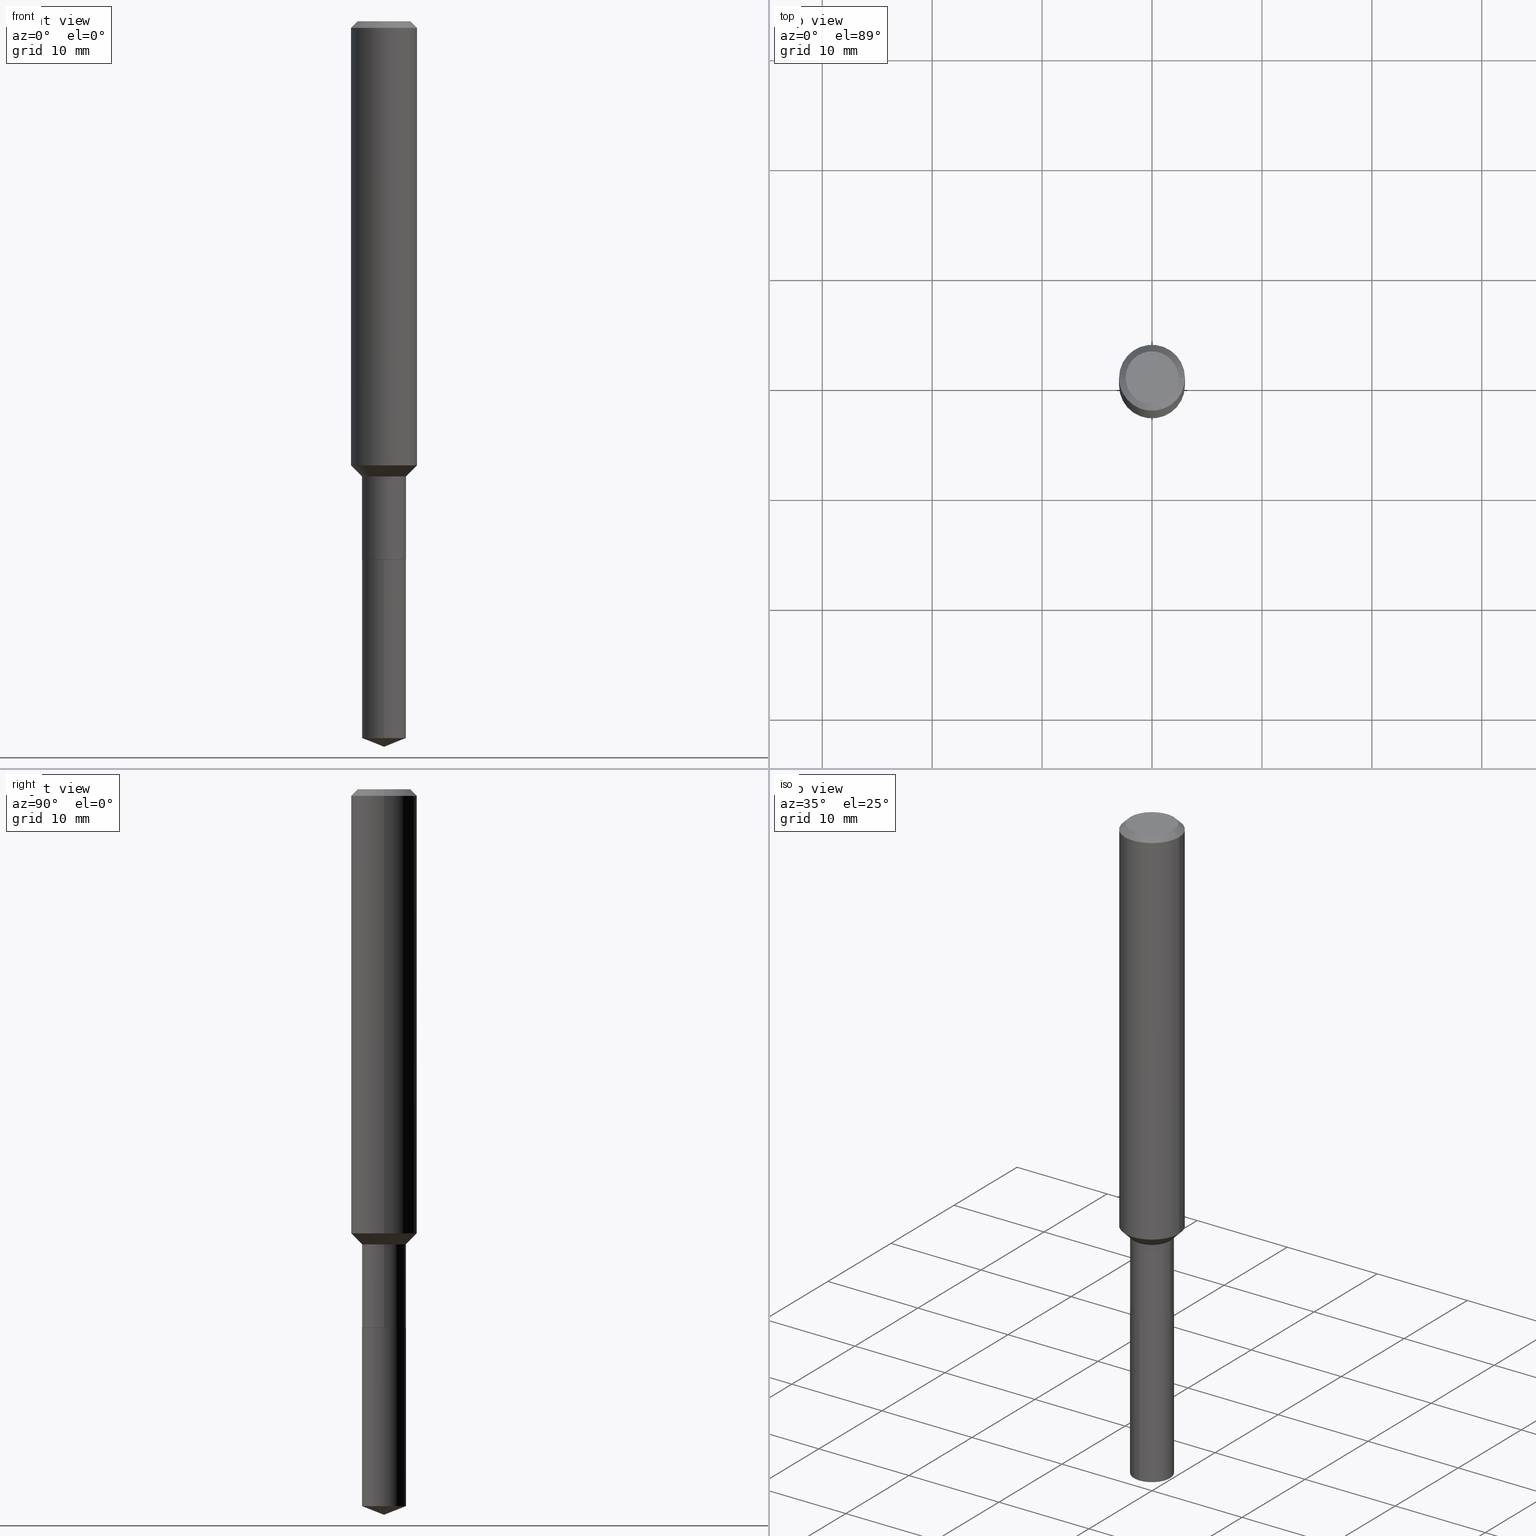
[diagram: canonical four-view strip — front | top / right | iso, engineering-drawing reading convention]
A machine part, canonical four-view strip (front | top / right | iso — engineering-drawing reading convention). The complete STEP part file that produces these views, byte-faithful:
ISO-10303-21;
HEADER;
FILE_DESCRIPTION (( 'STEP AP203' ),
    '1' );
FILE_NAME ('66410.STEP',
    '2024-04-24T22:19:05',
    ( '' ),
    ( '' ),
    'SwSTEP 2.0',
    'SolidWorks 2023',
    '' );
FILE_SCHEMA (( 'CONFIG_CONTROL_DESIGN' ));
ENDSEC;

DATA;
#1 = AXIS2_PLACEMENT_3D ( 'NONE', #396, #177, #435 ) ;
#2 = EDGE_CURVE ( 'NONE', #484, #388, #211, .T. ) ;
#3 = DIRECTION ( 'NONE',  ( 1.000000000000000000, 0.000000000000000000, 0.000000000000000000 ) ) ;
#4 = DIRECTION ( 'NONE',  ( -6.982962677686264344E-15, -1.000000000000000000, 6.938026650575906587E-15 ) ) ;
#5 = CARTESIAN_POINT ( 'NONE',  ( 0.000000000000000000, 0.000000000000000000, 0.000000000000000000 ) ) ;
#6 = DIRECTION ( 'NONE',  ( 1.000000000000000000, -6.982962677686267499E-15, 4.875432709231658792E-29 ) ) ;
#7 = APPROVAL_ROLE ( '' ) ;
#8 = CARTESIAN_POINT ( 'NONE',  ( 4.716267017698007905E-46, -6.733579360998555036E-32, -1.928573779297252010E-17 ) ) ;
#9 = VECTOR ( 'NONE', #148, 39.37007874015748143 ) ;
#10 = AXIS2_PLACEMENT_3D ( 'NONE', #476, #391, #58 ) ;
#11 = DIRECTION ( 'NONE',  ( -2.445468806185136597E-29, 3.491481338843145583E-15, 1.000000000000000000 ) ) ;
#12 = DIRECTION ( 'NONE',  ( -2.445600324468022812E-29, 3.491292997176496654E-15, 1.000000000000000000 ) ) ;
#13 = CARTESIAN_POINT ( 'NONE',  ( 5.595524044111417134E-16, 0.07874999999999326983, -1.929100000000000259 ) ) ;
#14 = APPROVAL_ROLE ( '' ) ;
#15 = CARTESIAN_POINT ( 'NONE',  ( 4.716331139608654438E-29, -6.733670910092890989E-15, -1.928600000000000092 ) ) ;
#16 = CONICAL_SURFACE ( 'NONE', #1, 0.07825000000000000011, 0.7853981633978239785 ) ;
#17 = CARTESIAN_POINT ( 'NONE',  ( -0.07825000000000000011, -6.176767732855921811E-15, -1.929099999999999593 ) ) ;
#18 = VERTEX_POINT ( 'NONE', #77 ) ;
#19 = DIRECTION ( 'NONE',  ( -2.445468806185136877E-29, 3.491481338843145188E-15, 1.000000000000000000 ) ) ;
#20 = DIRECTION ( 'NONE',  ( -2.445468806185136597E-29, 3.491481338843145583E-15, 1.000000000000000000 ) ) ;
#21 = EDGE_LOOP ( 'NONE', ( #122, #194, #360, #249 ) ) ;
#22 = CONICAL_SURFACE ( 'NONE', #301, 0.07874999999999995892, 0.7853981633974482790 ) ;
#23 = CARTESIAN_POINT ( 'NONE',  ( 4.717553874011746118E-29, -6.735416650762310126E-15, -1.929099999999999593 ) ) ;
#24 = EDGE_LOOP ( 'NONE', ( #400, #252, #307, #136 ) ) ;
#25 = CARTESIAN_POINT ( 'NONE',  ( 0.000000000000000000, 0.000000000000000000, 0.000000000000000000 ) ) ;
#26 = ORIENTED_EDGE ( 'NONE', *, *, #384, .T. ) ;
#27 = CC_DESIGN_PERSON_AND_ORGANIZATION_ASSIGNMENT ( #488, #266, ( #46 ) ) ;
#28 = CARTESIAN_POINT ( 'NONE',  ( 0.1181000000000001909, -6.378063535731712963E-15, -1.590549999999999464 ) ) ;
#29 = ORIENTED_EDGE ( 'NONE', *, *, #455, .F. ) ;
#30 = AXIS2_PLACEMENT_3D ( 'NONE', #383, #50, #201 ) ;
#31 = AXIS2_PLACEMENT_3D ( 'NONE', #295, #401, #318 ) ;
#32 = APPLICATION_PROTOCOL_DEFINITION ( 'international standard', 'config_control_design', 1994, #42 ) ;
#33 = EDGE_LOOP ( 'NONE', ( #217, #68, #338, #259 ) ) ;
#34 = CARTESIAN_POINT ( 'NONE',  ( 6.354140459258678806E-29, -9.072502383681672387E-15, -2.598399999999999821 ) ) ;
#35 =( CONVERSION_BASED_UNIT ( 'INCH', #185 ) LENGTH_UNIT ( ) NAMED_UNIT ( #243 ) );
#36 = ORIENTED_EDGE ( 'NONE', *, *, #187, .T. ) ;
#37 = CC_DESIGN_PERSON_AND_ORGANIZATION_ASSIGNMENT ( #147, #376, ( #355 ) ) ;
#38 = AXIS2_PLACEMENT_3D ( 'NONE', #23, #214, #433 ) ;
#39 = CALENDAR_DATE ( 2024, 24, 4 ) ;
#40 = PLANE ( 'NONE',  #228 ) ;
#41 = EDGE_LOOP ( 'NONE', ( #213, #63, #443, #51 ) ) ;
#42 = APPLICATION_CONTEXT ( 'configuration controlled 3d designs of mechanical parts and assemblies' ) ;
#43 = CC_DESIGN_PERSON_AND_ORGANIZATION_ASSIGNMENT ( #336, #306, ( #369 ) ) ;
#44 = DIRECTION ( 'NONE',  ( -2.438088387897960049E-29, 3.491481338843145188E-15, 1.000000000000000000 ) ) ;
#45 = AXIS2_PLACEMENT_3D ( 'NONE', #356, #12, #382 ) ;
#46 = PRODUCT_DEFINITION_FORMATION_WITH_SPECIFIED_SOURCE ( 'ANY', '', #355, .NOT_KNOWN. ) ;
#47 = DIRECTION ( 'NONE',  ( -2.445468806185136597E-29, 3.491481338843145583E-15, 1.000000000000000000 ) ) ;
#48 = DIRECTION ( 'NONE',  ( -6.982962677686264344E-15, -1.000000000000000000, 3.469013325287953293E-15 ) ) ;
#49 = ADVANCED_FACE ( 'NONE', ( #343 ), #375, .T. ) ;
#50 = DIRECTION ( 'NONE',  ( -2.445468806185136597E-29, 3.491481338843145583E-15, 1.000000000000000000 ) ) ;
#51 = ORIENTED_EDGE ( 'NONE', *, *, #244, .F. ) ;
#52 = CC_DESIGN_DATE_AND_TIME_ASSIGNMENT ( #114, #74, ( #436 ) ) ;
#53 = DATE_AND_TIME ( #462, #337 ) ;
#54 = CONICAL_SURFACE ( 'NONE', #38, 0.07825000000000000011, 0.7853981633978239785 ) ;
#55 = CARTESIAN_POINT ( 'NONE',  ( -0.07874999999999997280, 5.595524044110787031E-16, -3.873661383575737091E-30 ) ) ;
#56 = ORIENTED_EDGE ( 'NONE', *, *, #157, .T. ) ;
#57 = CARTESIAN_POINT ( 'NONE',  ( -0.07874999999999995892, -5.652665767725588167E-15, -1.629899999999999682 ) ) ;
#58 = DIRECTION ( 'NONE',  ( 1.000000000000000000, -6.982962677686266711E-15, 4.876176775795935793E-29 ) ) ;
#59 = EDGE_CURVE ( 'NONE', #215, #18, #368, .T. ) ;
#60 = ORIENTED_EDGE ( 'NONE', *, *, #314, .T. ) ;
#61 = DIRECTION ( 'NONE',  ( 1.000000000000000000, -6.982962677686266711E-15, 0.000000000000000000 ) ) ;
#62 = AXIS2_PLACEMENT_3D ( 'NONE', #459, #47, #162 ) ;
#63 = ORIENTED_EDGE ( 'NONE', *, *, #2, .T. ) ;
#64 = VECTOR ( 'NONE', #19, 39.37007874015748143 ) ;
#65 = CARTESIAN_POINT ( 'NONE',  ( -0.1181000000000001077, 8.391509709326790846E-16, -5.809262341591049389E-30 ) ) ;
#66 = ORIENTED_EDGE ( 'NONE', *, *, #419, .T. ) ;
#67 = CARTESIAN_POINT ( 'NONE',  ( -0.07825000000000000011, -6.179416960030031434E-15, -1.929099999999999593 ) ) ;
#68 = ORIENTED_EDGE ( 'NONE', *, *, #458, .T. ) ;
#69 = ADVANCED_FACE ( 'NONE', ( #457 ), #40, .F. ) ;
#70 = COORDINATED_UNIVERSAL_TIME_OFFSET ( 5, 0, .BEHIND. ) ;
#71 = ORIENTED_EDGE ( 'NONE', *, *, #274, .F. ) ;
#72 = AXIS2_PLACEMENT_3D ( 'NONE', #373, #270, #4 ) ;
#73 = VECTOR ( 'NONE', #107, 39.37007874015748143 ) ;
#74 = DATE_TIME_ROLE ( 'creation_date' ) ;
#75 = EDGE_CURVE ( 'NONE', #365, #215, #305, .T. ) ;
#76 = DESIGN_CONTEXT ( 'detailed design', #42, 'design' ) ;
#77 = CARTESIAN_POINT ( 'NONE',  ( -0.1180999999999999966, -1.978771245427539515E-15, -0.02362000000000014088 ) ) ;
#78 = DIRECTION ( 'NONE',  ( 0.000000000000000000, 0.000000000000000000, 1.000000000000000000 ) ) ;
#79 = FACE_OUTER_BOUND ( 'NONE', #241, .T. ) ;
#80 = MECHANICAL_CONTEXT ( 'NONE', #206, 'mechanical' ) ;
#81 = EDGE_LOOP ( 'NONE', ( #288, #402 ) ) ;
#82 = CIRCLE ( 'NONE', #352, 0.07825000000000000011 ) ;
#83 = VECTOR ( 'NONE', #285, 39.37007874015748854 ) ;
#84 = PERSON_AND_ORGANIZATION ( #258, #168 ) ;
#85 = ORIENTED_EDGE ( 'NONE', *, *, #218, .F. ) ;
#86 = CARTESIAN_POINT ( 'NONE',  ( -8.992908317008253669E-28, 1.283803411500265385E-13, 36.77167874015748339 ) ) ;
#87 = CARTESIAN_POINT ( 'NONE',  ( 4.717553874011746118E-29, -6.735416650762310126E-15, -1.929099999999999593 ) ) ;
#88 = CONICAL_SURFACE ( 'NONE', #291, 99.94676754583893796, 1.195550537616115960 ) ;
#89 = AXIS2_PLACEMENT_3D ( 'NONE', #99, #399, #61 ) ;
#90 = DIRECTION ( 'NONE',  ( -6.982962677686265922E-15, -1.000000000000000000, 3.498627837350040510E-15 ) ) ;
#91 = ORIENTED_EDGE ( 'NONE', *, *, #75, .T. ) ;
#92 = DIRECTION ( 'NONE',  ( -2.445600324468022812E-29, 3.491292997176496654E-15, 1.000000000000000000 ) ) ;
#93 = APPROVAL ( #341, 'UNSPECIFIED' ) ;
#94 = DIRECTION ( 'NONE',  ( 2.445468806185136597E-29, -3.491481338843145583E-15, -1.000000000000000000 ) ) ;
#95 = APPROVAL_PERSON_ORGANIZATION ( #84, #119, #221 ) ;
#96 = CARTESIAN_POINT ( 'NONE',  ( -0.1180999999999999966, 7.422191030112725094E-16, -0.02362000000000014088 ) ) ;
#97 = LINE ( 'NONE', #359, #430 ) ;
#98 = VERTEX_POINT ( 'NONE', #378 ) ;
#99 = CARTESIAN_POINT ( 'NONE',  ( 5.776197320209327532E-31, -8.246878922347559293E-17, -0.02362000000000014088 ) ) ;
#100 = ORIENTED_EDGE ( 'NONE', *, *, #187, .F. ) ;
#101 = CARTESIAN_POINT ( 'NONE',  ( -5.499083108677304340E-16, -0.07875000000000892397, -2.567379550045322478 ) ) ;
#102 = ORIENTED_EDGE ( 'NONE', *, *, #455, .T. ) ;
#103 = CIRCLE ( 'NONE', #272, 0.07874999999999995892 ) ;
#104 = DIRECTION ( 'NONE',  ( 1.000000000000000000, -6.982962677686267499E-15, 4.876176775795935793E-29 ) ) ;
#105 = VERTEX_POINT ( 'NONE', #222 ) ;
#106 = ADVANCED_FACE ( 'NONE', ( #79 ), #191, .F. ) ;
#107 = DIRECTION ( 'NONE',  ( 0.7071067811865459074, -7.319954787623249734E-15, -0.7071067811865491270 ) ) ;
#108 = ORIENTED_EDGE ( 'NONE', *, *, #268, .F. ) ;
#109 = PERSON_AND_ORGANIZATION_ROLE ( 'creator' ) ;
#110 = CARTESIAN_POINT ( 'NONE',  ( 0.09447999999999998066, -7.704367267948738690E-16, -1.928573779296752193E-17 ) ) ;
#111 = AXIS2_PLACEMENT_3D ( 'NONE', #169, #386, #465 ) ;
#112 =( NAMED_UNIT ( * ) PLANE_ANGLE_UNIT ( ) SI_UNIT ( $, .RADIAN. ) );
#113 = FACE_OUTER_BOUND ( 'NONE', #394, .T. ) ;
#114 = DATE_AND_TIME ( #406, #159 ) ;
#115 = CC_DESIGN_DATE_AND_TIME_ASSIGNMENT ( #381, #354, ( #369 ) ) ;
#116 = DIRECTION ( 'NONE',  ( -2.445600324468022812E-29, 3.491292997176496654E-15, 1.000000000000000000 ) ) ;
#117 = PRODUCT_DEFINITION_SHAPE ( 'NONE', 'NONE',  #436 ) ;
#118 = ORIENTED_EDGE ( 'NONE', *, *, #314, .F. ) ;
#119 = APPROVAL ( #152, 'UNSPECIFIED' ) ;
#120 = AXIS2_PLACEMENT_3D ( 'NONE', #240, #428, #239 ) ;
#121 = CC_DESIGN_APPROVAL ( #93, ( #436 ) ) ;
#122 = ORIENTED_EDGE ( 'NONE', *, *, #458, .F. ) ;
#123 = CARTESIAN_POINT ( 'NONE',  ( -5.499083108677462112E-16, -0.07875000000000671740, -1.929099999999999593 ) ) ;
#124 = DIRECTION ( 'NONE',  ( 0.7071067811865474617, -2.468850131082256666E-15, 0.7071067811865474617 ) ) ;
#125 = ORIENTED_EDGE ( 'NONE', *, *, #348, .F. ) ;
#126 = CONICAL_SURFACE ( 'NONE', #471, 99.94676754583893796, 1.195550537616115960 ) ;
#127 = DIRECTION ( 'NONE',  ( -2.445468806185136597E-29, 3.491481338843145583E-15, 1.000000000000000000 ) ) ;
#128 = DIRECTION ( 'NONE',  ( 1.000000000000000000, -6.982962677686266711E-15, 4.876176775795935793E-29 ) ) ;
#129 = DIRECTION ( 'NONE',  ( -1.000000000000000000, 6.982962677686266711E-15, 0.000000000000000000 ) ) ;
#130 = EDGE_LOOP ( 'NONE', ( #392, #286, #175, #474 ) ) ;
#131 = CC_DESIGN_PERSON_AND_ORGANIZATION_ASSIGNMENT ( #300, #264, ( #46 ) ) ;
#132 = CIRCLE ( 'NONE', #429, 0.07875000000000000056 ) ;
#133 = CARTESIAN_POINT ( 'NONE',  ( 0.000000000000000000, 0.000000000000000000, 0.000000000000000000 ) ) ;
#134 = ORIENTED_EDGE ( 'NONE', *, *, #161, .T. ) ;
#135 = CARTESIAN_POINT ( 'NONE',  ( 3.889640409677768194E-29, -5.553375643496963912E-15, -1.590549999999999464 ) ) ;
#136 = ORIENTED_EDGE ( 'NONE', *, *, #427, .T. ) ;
#137 = EDGE_CURVE ( 'NONE', #105, #388, #445, .T. ) ;
#138 = CARTESIAN_POINT ( 'NONE',  ( 3.985869607201153397E-29, -5.690765434180441370E-15, -1.629899999999999682 ) ) ;
#139 = EDGE_LOOP ( 'NONE', ( #208, #102, #85, #371 ) ) ;
#140 = CARTESIAN_POINT ( 'NONE',  ( 0.07825000000000000011, -7.281833480291261254E-15, -1.929099999999999593 ) ) ;
#141 = EDGE_CURVE ( 'NONE', #290, #365, #420, .T. ) ;
#142 = AXIS2_PLACEMENT_3D ( 'NONE', #227, #409, #230 ) ;
#143 = ORIENTED_EDGE ( 'NONE', *, *, #281, .F. ) ;
#144 = LOCAL_TIME ( 18, 19, 5.000000000000000000, #413 ) ;
#145 = FACE_OUTER_BOUND ( 'NONE', #21, .T. ) ;
#146 = VERTEX_POINT ( 'NONE', #110 ) ;
#147 = PERSON_AND_ORGANIZATION ( #258, #168 ) ;
#148 = DIRECTION ( 'NONE',  ( -2.445468806185136877E-29, 3.491481338843145188E-15, 1.000000000000000000 ) ) ;
#149 = PLANE ( 'NONE',  #245 ) ;
#150 = ORIENTED_EDGE ( 'NONE', *, *, #303, .F. ) ;
#151 = APPROVAL_PERSON_ORGANIZATION ( #350, #167, #14 ) ;
#152 = APPROVAL_STATUS ( 'not_yet_approved' ) ;
#153 = CARTESIAN_POINT ( 'NONE',  ( 5.776197320209327532E-31, -8.246878922347559293E-17, -0.02362000000000014088 ) ) ;
#154 = CARTESIAN_POINT ( 'NONE',  ( 5.595524044111415162E-16, 0.07874999999999102163, -2.567379550045323811 ) ) ;
#155 = CYLINDRICAL_SURFACE ( 'NONE', #438, 0.07875000000000000056 ) ;
#156 = DIRECTION ( 'NONE',  ( -2.445600324468022812E-29, 3.491292997176496654E-15, 1.000000000000000000 ) ) ;
#157 = EDGE_CURVE ( 'NONE', #484, #202, #192, .T. ) ;
#158 = AXIS2_PLACEMENT_3D ( 'NONE', #8, #452, #6 ) ;
#159 = LOCAL_TIME ( 18, 19, 5.000000000000000000, #410 ) ;
#160 = DIRECTION ( 'NONE',  ( 1.000000000000000000, -6.982962677686261977E-15, 0.000000000000000000 ) ) ;
#161 = EDGE_CURVE ( 'NONE', #397, #146, #344, .T. ) ;
#162 = DIRECTION ( 'NONE',  ( 1.000000000000000000, -6.982962677686267499E-15, 4.875432709231658792E-29 ) ) ;
#163 = ADVANCED_FACE ( 'NONE', ( #448 ), #155, .T. ) ;
#164 = CALENDAR_DATE ( 2024, 24, 4 ) ;
#165 = CARTESIAN_POINT ( 'NONE',  ( 0.07874999999999995892, -6.240673745048234716E-15, -1.629899999999999682 ) ) ;
#166 = CLOSED_SHELL ( 'NONE', ( #163, #279, #171, #225, #485 ) ) ;
#167 = APPROVAL ( #425, 'UNSPECIFIED' ) ;
#168 = ORGANIZATION ( 'UNSPECIFIED', 'UNSPECIFIED', '' ) ;
#169 = CARTESIAN_POINT ( 'NONE',  ( 4.717553874011746118E-29, -6.735416650762310126E-15, -1.929099999999999593 ) ) ;
#170 = CARTESIAN_POINT ( 'NONE',  ( 0.1180999999999999966, -9.071566814582237199E-16, -0.02362000000000014088 ) ) ;
#171 = ADVANCED_FACE ( 'NONE', ( #113 ), #88, .T. ) ;
#172 = LINE ( 'NONE', #440, #73 ) ;
#173 = VECTOR ( 'NONE', #334, 39.37007874015748854 ) ;
#174 = CARTESIAN_POINT ( 'NONE',  ( 0.07875000000000000056, -7.283579220960683546E-15, -1.928600000000000092 ) ) ;
#175 = ORIENTED_EDGE ( 'NONE', *, *, #179, .F. ) ;
#176 = EDGE_CURVE ( 'NONE', #283, #202, #203, .T. ) ;
#177 = DIRECTION ( 'NONE',  ( -2.445468806185136597E-29, 3.491481338843145583E-15, 1.000000000000000000 ) ) ;
#178 = EDGE_LOOP ( 'NONE', ( #108, #323, #220, #143 ) ) ;
#179 = EDGE_CURVE ( 'NONE', #98, #196, #446, .T. ) ;
#180 = LINE ( 'NONE', #65, #271 ) ;
#181 = ORIENTED_EDGE ( 'NONE', *, *, #141, .T. ) ;
#182 = LINE ( 'NONE', #67, #482 ) ;
#183 = CC_DESIGN_APPROVAL ( #119, ( #46 ) ) ;
#184 = ORIENTED_EDGE ( 'NONE', *, *, #176, .F. ) ;
#185 = LENGTH_MEASURE_WITH_UNIT ( LENGTH_MEASURE( 0.02539999999999999897 ), #223 );
#186 = ORIENTED_EDGE ( 'NONE', *, *, #398, .F. ) ;
#187 = EDGE_CURVE ( 'NONE', #254, #332, #82, .T. ) ;
#188 = DATE_AND_TIME ( #372, #144 ) ;
#189 = DIRECTION ( 'NONE',  ( 2.438088387897960049E-29, -3.491481338843145188E-15, -1.000000000000000000 ) ) ;
#190 = SECURITY_CLASSIFICATION_LEVEL ( 'unclassified' ) ;
#191 = PLANE ( 'NONE',  #328 ) ;
#192 = LINE ( 'NONE', #340, #470 ) ;
#193 = ADVANCED_FACE ( 'NONE', ( #349 ), #403, .T. ) ;
#194 = ORIENTED_EDGE ( 'NONE', *, *, #475, .T. ) ;
#195 = APPROVAL_DATE_TIME ( #53, #167 ) ;
#196 = VERTEX_POINT ( 'NONE', #57 ) ;
#197 = CIRCLE ( 'NONE', #284, 0.07875000000000000056 ) ;
#198 = VECTOR ( 'NONE', #366, 39.37007874015748854 ) ;
#199 = LINE ( 'NONE', #55, #439 ) ;
#200 = DIRECTION ( 'NONE',  ( -0.7071067811865459074, 2.468850131082240100E-15, -0.7071067811865491270 ) ) ;
#201 = DIRECTION ( 'NONE',  ( 1.000000000000000000, -6.982962677686265922E-15, 0.000000000000000000 ) ) ;
#202 = VERTEX_POINT ( 'NONE', #13 ) ;
#203 = CIRCLE ( 'NONE', #490, 0.07875000000000000056 ) ;
#204 = EDGE_CURVE ( 'NONE', #98, #365, #351, .T. ) ;
#205 = DIRECTION ( 'NONE',  ( -2.445468806185136597E-29, 3.491481338843145583E-15, 1.000000000000000000 ) ) ;
#206 = APPLICATION_CONTEXT ( 'configuration controlled 3d designs of mechanical parts and assemblies' ) ;
#207 = CARTESIAN_POINT ( 'NONE',  ( 0.07874999999999997280, -5.499083108677933457E-16, 3.839989210939298316E-30 ) ) ;
#208 = ORIENTED_EDGE ( 'NONE', *, *, #274, .T. ) ;
#209 = DIRECTION ( 'NONE',  ( -2.445468806185136597E-29, 3.491481338843145583E-15, 1.000000000000000000 ) ) ;
#210 = VERTEX_POINT ( 'NONE', #276 ) ;
#211 = CIRCLE ( 'NONE', #72, 0.07875000000000000056 ) ;
#212 = DIRECTION ( 'NONE',  ( -2.445600324468022531E-29, 3.491292997176496654E-15, 1.000000000000000000 ) ) ;
#213 = ORIENTED_EDGE ( 'NONE', *, *, #157, .F. ) ;
#214 = DIRECTION ( 'NONE',  ( -2.445468806185136597E-29, 3.491481338843145583E-15, 1.000000000000000000 ) ) ;
#215 = VERTEX_POINT ( 'NONE', #170 ) ;
#216 = DIRECTION ( 'NONE',  ( -0.7071067811868130271, 7.493145998871311837E-15, 0.7071067811862817853 ) ) ;
#217 = ORIENTED_EDGE ( 'NONE', *, *, #179, .T. ) ;
#218 = EDGE_CURVE ( 'NONE', #367, #210, #132, .T. ) ;
#219 = CIRCLE ( 'NONE', #422, 0.07875000000000000056 ) ;
#220 = ORIENTED_EDGE ( 'NONE', *, *, #59, .T. ) ;
#221 = APPROVAL_ROLE ( '' ) ;
#222 = CARTESIAN_POINT ( 'NONE',  ( 6.354647883097709109E-29, -9.071775723863410041E-15, -2.598399999999999821 ) ) ;
#223 =( LENGTH_UNIT ( ) NAMED_UNIT ( * ) SI_UNIT ( $, .METRE. ) );
#224 = ORIENTED_EDGE ( 'NONE', *, *, #75, .F. ) ;
#225 = ADVANCED_FACE ( 'NONE', ( #316 ), #282, .T. ) ;
#226 = CARTESIAN_POINT ( 'NONE',  ( 4.717553874011746679E-29, -6.735416650762311704E-15, -1.929099999999999815 ) ) ;
#227 = CARTESIAN_POINT ( 'NONE',  ( 5.776197320209327532E-31, -8.246878922347559293E-17, -0.02362000000000014088 ) ) ;
#228 = AXIS2_PLACEMENT_3D ( 'NONE', #407, #44, #379 ) ;
#229 = CONICAL_SURFACE ( 'NONE', #31, 0.07874999999999995892, 0.7853981633974482790 ) ;
#230 = DIRECTION ( 'NONE',  ( 1.000000000000000000, -6.982962677686266711E-15, 0.000000000000000000 ) ) ;
#231 = DIRECTION ( 'NONE',  ( 2.445468806185136597E-29, -3.491481338843145583E-15, -1.000000000000000000 ) ) ;
#232 = MANIFOLD_SOLID_BREP ( 'Body-Move/Copy2[1]', #166 ) ;
#233 = COORDINATED_UNIVERSAL_TIME_OFFSET ( 5, 0, .BEHIND. ) ;
#234 = ADVANCED_FACE ( 'NONE', ( #417 ), #385, .T. ) ;
#235 = DIRECTION ( 'NONE',  ( 1.000000000000000000, -6.982962677686267499E-15, 0.000000000000000000 ) ) ;
#236 = AXIS2_PLACEMENT_3D ( 'NONE', #424, #94, #129 ) ;
#237 =( GEOMETRIC_REPRESENTATION_CONTEXT ( 3 ) GLOBAL_UNCERTAINTY_ASSIGNED_CONTEXT ( ( #451 ) ) GLOBAL_UNIT_ASSIGNED_CONTEXT ( ( #35, #112, #453 ) ) REPRESENTATION_CONTEXT ( 'NONE', 'WORKASPACE' ) );
#238 = DIRECTION ( 'NONE',  ( 1.000000000000000000, -6.982962677686265922E-15, 0.000000000000000000 ) ) ;
#239 = DIRECTION ( 'NONE',  ( -6.982962677686264344E-15, -1.000000000000000000, 3.469013325287953293E-15 ) ) ;
#240 = CARTESIAN_POINT ( 'NONE',  ( 4.717553874011746679E-29, -6.735416650762311704E-15, -1.929099999999999815 ) ) ;
#241 = EDGE_LOOP ( 'NONE', ( #134, #327 ) ) ;
#242 = CLOSED_SHELL ( 'NONE', ( #342, #49, #234, #309, #319, #317, #460, #472, #193, #106, #69, #444 ) ) ;
#243 = DIMENSIONAL_EXPONENTS ( 1.000000000000000000, 0.000000000000000000, 0.000000000000000000, 0.000000000000000000, 0.000000000000000000, 0.000000000000000000, 0.000000000000000000 ) ;
#244 = EDGE_CURVE ( 'NONE', #202, #283, #197, .T. ) ;
#245 = AXIS2_PLACEMENT_3D ( 'NONE', #226, #261, #331 ) ;
#246 = DIRECTION ( 'NONE',  ( -2.445600324468022812E-29, 3.491292997176496654E-15, 1.000000000000000000 ) ) ;
#247 = ORIENTED_EDGE ( 'NONE', *, *, #59, .F. ) ;
#248 = CYLINDRICAL_SURFACE ( 'NONE', #10, 0.1181000000000001077 ) ;
#249 = ORIENTED_EDGE ( 'NONE', *, *, #141, .F. ) ;
#250 = CARTESIAN_POINT ( 'NONE',  ( 0.07825000000000000011, -7.281833480291261254E-15, -1.929099999999999593 ) ) ;
#251 = EDGE_CURVE ( 'NONE', #388, #484, #260, .T. ) ;
#252 = ORIENTED_EDGE ( 'NONE', *, *, #161, .F. ) ;
#253 = CYLINDRICAL_SURFACE ( 'NONE', #292, 0.07874999999999997280 ) ;
#254 = VERTEX_POINT ( 'NONE', #17 ) ;
#255 = DIRECTION ( 'NONE',  ( 6.611014441532057911E-15, 0.9304175679820259059, 0.3665012267242938049 ) ) ;
#256 = ORIENTED_EDGE ( 'NONE', *, *, #251, .F. ) ;
#257 = DIRECTION ( 'NONE',  ( -2.445468806185136597E-29, 3.491481338843145583E-15, 1.000000000000000000 ) ) ;
#258 = PERSON ( 'UNSPECIFIED', 'UNSPECIFIED', 'UNSPECIFIED', ('UNSPECIFIED'), ('UNSPECIFIED'), ('UNSPECIFIED') ) ;
#259 = ORIENTED_EDGE ( 'NONE', *, *, #204, .F. ) ;
#260 = CIRCLE ( 'NONE', #45, 0.07875000000000000056 ) ;
#261 = DIRECTION ( 'NONE',  ( 2.445600324468022531E-29, -3.491292997176496654E-15, -1.000000000000000000 ) ) ;
#262 = AXIS2_PLACEMENT_3D ( 'NONE', #135, #289, #322 ) ;
#263 = ORIENTED_EDGE ( 'NONE', *, *, #137, .F. ) ;
#264 = PERSON_AND_ORGANIZATION_ROLE ( 'design_supplier' ) ;
#265 = DIRECTION ( 'NONE',  ( -6.982962677686264344E-15, -1.000000000000000000, 3.469013325287953293E-15 ) ) ;
#266 = PERSON_AND_ORGANIZATION_ROLE ( 'creator' ) ;
#267 = DIRECTION ( 'NONE',  ( -6.982962677686265922E-15, -1.000000000000000000, 3.498627837350040510E-15 ) ) ;
#268 = EDGE_CURVE ( 'NONE', #146, #397, #277, .T. ) ;
#269 = VECTOR ( 'NONE', #124, 39.37007874015748854 ) ;
#270 = DIRECTION ( 'NONE',  ( -2.445600324468022812E-29, 3.491292997176496654E-15, 1.000000000000000000 ) ) ;
#271 = VECTOR ( 'NONE', #326, 39.37007874015748143 ) ;
#272 = AXIS2_PLACEMENT_3D ( 'NONE', #138, #209, #486 ) ;
#273 = DIRECTION ( 'NONE',  ( -2.445468806185136597E-29, 3.491481338843145583E-15, 1.000000000000000000 ) ) ;
#274 = EDGE_CURVE ( 'NONE', #332, #254, #320, .T. ) ;
#275 = FACE_OUTER_BOUND ( 'NONE', #33, .T. ) ;
#276 = CARTESIAN_POINT ( 'NONE',  ( -0.07875000000000000056, -5.652665767725588167E-15, -1.928600000000000092 ) ) ;
#277 = CIRCLE ( 'NONE', #62, 0.09447999999999998066 ) ;
#278 = DIRECTION ( 'NONE',  ( 1.000000000000000000, -6.982962677686261977E-15, 0.000000000000000000 ) ) ;
#279 = ADVANCED_FACE ( 'NONE', ( #311 ), #126, .T. ) ;
#280 = LINE ( 'NONE', #96, #335 ) ;
#281 = EDGE_CURVE ( 'NONE', #397, #18, #280, .T. ) ;
#282 = CYLINDRICAL_SURFACE ( 'NONE', #120, 0.07875000000000000056 ) ;
#283 = VERTEX_POINT ( 'NONE', #123 ) ;
#284 = AXIS2_PLACEMENT_3D ( 'NONE', #315, #312, #48 ) ;
#285 = DIRECTION ( 'NONE',  ( 0.7071067811868130271, -2.468850131085038979E-15, 0.7071067811862817853 ) ) ;
#286 = ORIENTED_EDGE ( 'NONE', *, *, #303, .T. ) ;
#287 = CARTESIAN_POINT ( 'NONE',  ( 6.354652332605812611E-29, -9.071775723863410041E-15, -2.598399999999999821 ) ) ;
#288 = ORIENTED_EDGE ( 'NONE', *, *, #176, .T. ) ;
#289 = DIRECTION ( 'NONE',  ( -2.445468806185136597E-29, 3.491481338843145583E-15, 1.000000000000000000 ) ) ;
#290 = VERTEX_POINT ( 'NONE', #426 ) ;
#291 = AXIS2_PLACEMENT_3D ( 'NONE', #86, #116, #267 ) ;
#292 = AXIS2_PLACEMENT_3D ( 'NONE', #133, #257, #104 ) ;
#293 = FACE_OUTER_BOUND ( 'NONE', #432, .T. ) ;
#294 = ORIENTED_EDGE ( 'NONE', *, *, #137, .T. ) ;
#295 = CARTESIAN_POINT ( 'NONE',  ( 3.985869607201153397E-29, -5.690765434180441370E-15, -1.629899999999999682 ) ) ;
#296 = EDGE_LOOP ( 'NONE', ( #71, #100 ) ) ;
#297 = APPROVAL_DATE_TIME ( #449, #93 ) ;
#298 = DIRECTION ( 'NONE',  ( -1.000000000000000000, 6.982962677686265922E-15, -4.876176775795935793E-29 ) ) ;
#299 = AXIS2_PLACEMENT_3D ( 'NONE', #374, #273, #302 ) ;
#300 = PERSON_AND_ORGANIZATION ( #258, #168 ) ;
#301 = AXIS2_PLACEMENT_3D ( 'NONE', #347, #205, #238 ) ;
#302 = DIRECTION ( 'NONE',  ( 1.000000000000000000, -6.982962677686269077E-15, 0.000000000000000000 ) ) ;
#303 = EDGE_CURVE ( 'NONE', #210, #196, #199, .T. ) ;
#304 = PERSON_AND_ORGANIZATION ( #258, #168 ) ;
#305 = LINE ( 'NONE', #380, #9 ) ;
#306 = PERSON_AND_ORGANIZATION_ROLE ( 'classification_officer' ) ;
#307 = ORIENTED_EDGE ( 'NONE', *, *, #281, .T. ) ;
#308 = DIRECTION ( 'NONE',  ( -2.445600324468022531E-29, 3.491292997176496654E-15, 1.000000000000000000 ) ) ;
#309 = ADVANCED_FACE ( 'NONE', ( #275 ), #22, .T. ) ;
#310 = CARTESIAN_POINT ( 'NONE',  ( 0.000000000000000000, 0.000000000000000000, 0.000000000000000000 ) ) ;
#311 = FACE_OUTER_BOUND ( 'NONE', #480, .T. ) ;
#312 = DIRECTION ( 'NONE',  ( -2.445600324468022812E-29, 3.491292997176496654E-15, 1.000000000000000000 ) ) ;
#313 = ORIENTED_EDGE ( 'NONE', *, *, #348, .T. ) ;
#314 = EDGE_CURVE ( 'NONE', #210, #367, #219, .T. ) ;
#315 = CARTESIAN_POINT ( 'NONE',  ( 4.717553874011746679E-29, -6.735416650762311704E-15, -1.929099999999999815 ) ) ;
#316 = FACE_OUTER_BOUND ( 'NONE', #41, .T. ) ;
#317 = ADVANCED_FACE ( 'NONE', ( #442 ), #469, .T. ) ;
#318 = DIRECTION ( 'NONE',  ( 1.000000000000000000, -6.982962677686265922E-15, 0.000000000000000000 ) ) ;
#319 = ADVANCED_FACE ( 'NONE', ( #483 ), #253, .T. ) ;
#320 = CIRCLE ( 'NONE', #111, 0.07825000000000000011 ) ;
#321 = CC_DESIGN_SECURITY_CLASSIFICATION ( #369, ( #46 ) ) ;
#322 = DIRECTION ( 'NONE',  ( 1.000000000000000000, -6.982962677686269077E-15, 0.000000000000000000 ) ) ;
#323 = ORIENTED_EDGE ( 'NONE', *, *, #450, .T. ) ;
#324 = CARTESIAN_POINT ( 'NONE',  ( -0.07874999999999995892, -5.131213029769363357E-15, -1.629899999999999682 ) ) ;
#325 = EDGE_LOOP ( 'NONE', ( #441, #56, #184, #186 ) ) ;
#326 = DIRECTION ( 'NONE',  ( -2.445468806185136877E-29, 3.491481338843145188E-15, 1.000000000000000000 ) ) ;
#327 = ORIENTED_EDGE ( 'NONE', *, *, #268, .T. ) ;
#328 = AXIS2_PLACEMENT_3D ( 'NONE', #416, #189, #298 ) ;
#329 = LINE ( 'NONE', #324, #198 ) ;
#330 = ORIENTED_EDGE ( 'NONE', *, *, #389, .T. ) ;
#331 = DIRECTION ( 'NONE',  ( 6.982962677686265922E-15, 1.000000000000000000, -3.491292997176496654E-15 ) ) ;
#332 = VERTEX_POINT ( 'NONE', #250 ) ;
#333 = APPROVAL_DATE_TIME ( #188, #119 ) ;
#334 = DIRECTION ( 'NONE',  ( -6.497071151882111159E-15, -0.9304175679820232414, 0.3665012267243003552 ) ) ;
#335 = VECTOR ( 'NONE', #200, 39.37007874015748143 ) ;
#336 = PERSON_AND_ORGANIZATION ( #258, #168 ) ;
#337 = LOCAL_TIME ( 18, 19, 5.000000000000000000, #418 ) ;
#338 = ORIENTED_EDGE ( 'NONE', *, *, #384, .F. ) ;
#339 = PERSON_AND_ORGANIZATION ( #258, #168 ) ;
#340 = CARTESIAN_POINT ( 'NONE',  ( 5.595524044111259361E-16, 0.07874999999999326983, -1.929100000000000259 ) ) ;
#341 = APPROVAL_STATUS ( 'not_yet_approved' ) ;
#342 = ADVANCED_FACE ( 'NONE', ( #393 ), #54, .T. ) ;
#343 = FACE_OUTER_BOUND ( 'NONE', #178, .T. ) ;
#344 = CIRCLE ( 'NONE', #158, 0.09447999999999998066 ) ;
#345 = DIRECTION ( 'NONE',  ( -2.445468806185136877E-29, 3.491481338843145188E-15, 1.000000000000000000 ) ) ;
#346 = LOCAL_TIME ( 18, 19, 5.000000000000000000, #233 ) ;
#347 = CARTESIAN_POINT ( 'NONE',  ( 3.985869607201153397E-29, -5.690765434180441370E-15, -1.629899999999999682 ) ) ;
#348 = EDGE_CURVE ( 'NONE', #290, #18, #180, .T. ) ;
#349 = FACE_OUTER_BOUND ( 'NONE', #24, .T. ) ;
#350 = PERSON_AND_ORGANIZATION ( #258, #168 ) ;
#351 = LINE ( 'NONE', #165, #269 ) ;
#352 = AXIS2_PLACEMENT_3D ( 'NONE', #87, #390, #235 ) ;
#353 = AXIS2_PLACEMENT_3D ( 'NONE', #25, #20, #364 ) ;
#354 = DATE_TIME_ROLE ( 'classification_date' ) ;
#355 = PRODUCT ( '66410', '66410', '', ( #80 ) ) ;
#356 = CARTESIAN_POINT ( 'NONE',  ( 6.278530548703893872E-29, -8.963837574076513446E-15, -2.567379550045322922 ) ) ;
#357 = CARTESIAN_POINT ( 'NONE',  ( -0.09447999999999998066, 7.009847083995354710E-16, -1.928573779297727792E-17 ) ) ;
#358 = CC_DESIGN_PERSON_AND_ORGANIZATION_ASSIGNMENT ( #339, #109, ( #436 ) ) ;
#359 = CARTESIAN_POINT ( 'NONE',  ( -5.499083108677462112E-16, -0.07875000000000671740, -1.929099999999999593 ) ) ;
#360 = ORIENTED_EDGE ( 'NONE', *, *, #204, .T. ) ;
#361 = APPROVAL_PERSON_ORGANIZATION ( #304, #93, #7 ) ;
#362 = LINE ( 'NONE', #140, #83 ) ;
#363 = ORIENTED_EDGE ( 'NONE', *, *, #389, .F. ) ;
#364 = DIRECTION ( 'NONE',  ( 1.000000000000000000, -6.982962677686267499E-15, 4.876176775795935793E-29 ) ) ;
#365 = VERTEX_POINT ( 'NONE', #28 ) ;
#366 = DIRECTION ( 'NONE',  ( -0.7071067811865474617, 7.493145998870352582E-15, 0.7071067811865474617 ) ) ;
#367 = VERTEX_POINT ( 'NONE', #174 ) ;
#368 = CIRCLE ( 'NONE', #142, 0.1180999999999999966 ) ;
#369 = SECURITY_CLASSIFICATION ( '', '', #190 ) ;
#370 = APPLICATION_PROTOCOL_DEFINITION ( 'international standard', 'config_control_design', 1994, #206 ) ;
#371 = ORIENTED_EDGE ( 'NONE', *, *, #405, .F. ) ;
#372 = CALENDAR_DATE ( 2024, 24, 4 ) ;
#373 = CARTESIAN_POINT ( 'NONE',  ( 6.278530548703893872E-29, -8.963837574076513446E-15, -2.567379550045322922 ) ) ;
#374 = CARTESIAN_POINT ( 'NONE',  ( 3.889640409677768194E-29, -5.553375643496963912E-15, -1.590549999999999464 ) ) ;
#375 = CONICAL_SURFACE ( 'NONE', #412, 0.1180999999999999966, 0.7853981633974460586 ) ;
#376 = PERSON_AND_ORGANIZATION_ROLE ( 'design_owner' ) ;
#377 = AXIS2_PLACEMENT_3D ( 'NONE', #5, #78, #3 ) ;
#378 = CARTESIAN_POINT ( 'NONE',  ( 0.07874999999999995892, -6.240673745048234716E-15, -1.629899999999999682 ) ) ;
#379 = DIRECTION ( 'NONE',  ( 1.000000000000000000, -6.982962677686265922E-15, 4.876176775795935793E-29 ) ) ;
#380 = CARTESIAN_POINT ( 'NONE',  ( 0.1181000000000001077, -8.246878922347488542E-16, 5.758764772215005345E-30 ) ) ;
#381 = DATE_AND_TIME ( #164, #346 ) ;
#382 = DIRECTION ( 'NONE',  ( -6.982962677686264344E-15, -1.000000000000000000, 6.938026650575906587E-15 ) ) ;
#383 = CARTESIAN_POINT ( 'NONE',  ( 3.985869607201153397E-29, -5.690765434180441370E-15, -1.629899999999999682 ) ) ;
#384 = EDGE_CURVE ( 'NONE', #365, #290, #456, .T. ) ;
#385 = CYLINDRICAL_SURFACE ( 'NONE', #387, 0.1181000000000001077 ) ;
#386 = DIRECTION ( 'NONE',  ( -2.445468806185136597E-29, 3.491481338843145583E-15, 1.000000000000000000 ) ) ;
#387 = AXIS2_PLACEMENT_3D ( 'NONE', #310, #461, #128 ) ;
#388 = VERTEX_POINT ( 'NONE', #101 ) ;
#389 = EDGE_CURVE ( 'NONE', #105, #484, #479, .T. ) ;
#390 = DIRECTION ( 'NONE',  ( -2.445468806185136597E-29, 3.491481338843145583E-15, 1.000000000000000000 ) ) ;
#391 = DIRECTION ( 'NONE',  ( -2.445468806185136597E-29, 3.491481338843145583E-15, 1.000000000000000000 ) ) ;
#392 = ORIENTED_EDGE ( 'NONE', *, *, #218, .T. ) ;
#393 = FACE_OUTER_BOUND ( 'NONE', #139, .T. ) ;
#394 = EDGE_LOOP ( 'NONE', ( #363, #294, #454 ) ) ;
#395 = MANIFOLD_SOLID_BREP ( 'Body-Move/Copy2[2]', #242 ) ;
#396 = CARTESIAN_POINT ( 'NONE',  ( 4.717553874011746118E-29, -6.735416650762310126E-15, -1.929099999999999593 ) ) ;
#397 = VERTEX_POINT ( 'NONE', #357 ) ;
#398 = EDGE_CURVE ( 'NONE', #388, #283, #97, .T. ) ;
#399 = DIRECTION ( 'NONE',  ( -2.445468806185136597E-29, 3.491481338843145583E-15, 1.000000000000000000 ) ) ;
#400 = ORIENTED_EDGE ( 'NONE', *, *, #450, .F. ) ;
#401 = DIRECTION ( 'NONE',  ( -2.445468806185136597E-29, 3.491481338843145583E-15, 1.000000000000000000 ) ) ;
#402 = ORIENTED_EDGE ( 'NONE', *, *, #244, .T. ) ;
#403 = CONICAL_SURFACE ( 'NONE', #236, 0.1180999999999999966, 0.7853981633974460586 ) ;
#404 = CIRCLE ( 'NONE', #89, 0.1180999999999999966 ) ;
#405 = EDGE_CURVE ( 'NONE', #332, #367, #362, .T. ) ;
#406 = CALENDAR_DATE ( 2024, 24, 4 ) ;
#407 = CARTESIAN_POINT ( 'NONE',  ( 9.420463641137069997E-29, -5.821912380552521061E-19, -1.929099999999999815 ) ) ;
#408 = FACE_OUTER_BOUND ( 'NONE', #81, .T. ) ;
#409 = DIRECTION ( 'NONE',  ( -2.445468806185136597E-29, 3.491481338843145583E-15, 1.000000000000000000 ) ) ;
#410 = COORDINATED_UNIVERSAL_TIME_OFFSET ( 5, 0, .BEHIND. ) ;
#411 = CARTESIAN_POINT ( 'NONE',  ( 4.717553874011746679E-29, -6.735416650762311704E-15, -1.929099999999999815 ) ) ;
#412 = AXIS2_PLACEMENT_3D ( 'NONE', #153, #231, #414 ) ;
#413 = COORDINATED_UNIVERSAL_TIME_OFFSET ( 5, 0, .BEHIND. ) ;
#414 = DIRECTION ( 'NONE',  ( -1.000000000000000000, 6.982962677686266711E-15, 0.000000000000000000 ) ) ;
#415 = ADVANCED_BREP_SHAPE_REPRESENTATION ( '66410', ( #232, #395, #377 ), #237 ) ;
#416 = CARTESIAN_POINT ( 'NONE',  ( 2.358133508849003952E-46, -3.366789680499277518E-32, -9.642868896486260050E-18 ) ) ;
#417 = FACE_OUTER_BOUND ( 'NONE', #434, .T. ) ;
#418 = COORDINATED_UNIVERSAL_TIME_OFFSET ( 5, 0, .BEHIND. ) ;
#419 = EDGE_CURVE ( 'NONE', #367, #98, #473, .T. ) ;
#420 = CIRCLE ( 'NONE', #299, 0.1181000000000001909 ) ;
#421 = CARTESIAN_POINT ( 'NONE',  ( -8.992908317008253669E-28, 1.283803411500265385E-13, 36.77167874015748339 ) ) ;
#422 = AXIS2_PLACEMENT_3D ( 'NONE', #463, #127, #278 ) ;
#423 = EDGE_LOOP ( 'NONE', ( #150, #60, #66, #487 ) ) ;
#424 = CARTESIAN_POINT ( 'NONE',  ( 5.776197320209327532E-31, -8.246878922347559293E-17, -0.02362000000000014088 ) ) ;
#425 = APPROVAL_STATUS ( 'not_yet_approved' ) ;
#426 = CARTESIAN_POINT ( 'NONE',  ( -0.1181000000000001909, -4.714224672564283348E-15, -1.590549999999999464 ) ) ;
#427 = EDGE_CURVE ( 'NONE', #18, #215, #404, .T. ) ;
#428 = DIRECTION ( 'NONE',  ( -2.445600324468022812E-29, 3.491292997176496654E-15, 1.000000000000000000 ) ) ;
#429 = AXIS2_PLACEMENT_3D ( 'NONE', #15, #11, #160 ) ;
#430 = VECTOR ( 'NONE', #212, 39.37007874015748143 ) ;
#431 = FACE_OUTER_BOUND ( 'NONE', #437, .T. ) ;
#432 = EDGE_LOOP ( 'NONE', ( #29, #36, #477, #118 ) ) ;
#433 = DIRECTION ( 'NONE',  ( 1.000000000000000000, -6.982962677686267499E-15, 0.000000000000000000 ) ) ;
#434 = EDGE_LOOP ( 'NONE', ( #26, #313, #247, #224 ) ) ;
#435 = DIRECTION ( 'NONE',  ( 1.000000000000000000, -6.982962677686267499E-15, 0.000000000000000000 ) ) ;
#436 = PRODUCT_DEFINITION ( 'UNKNOWN', '', #46, #76 ) ;
#437 = EDGE_LOOP ( 'NONE', ( #125, #181, #91, #468 ) ) ;
#438 = AXIS2_PLACEMENT_3D ( 'NONE', #489, #156, #265 ) ;
#439 = VECTOR ( 'NONE', #345, 39.37007874015748143 ) ;
#440 = CARTESIAN_POINT ( 'NONE',  ( 0.1180999999999999966, -8.926936027602933910E-16, -0.02362000000000014088 ) ) ;
#441 = ORIENTED_EDGE ( 'NONE', *, *, #251, .T. ) ;
#442 = FACE_OUTER_BOUND ( 'NONE', #423, .T. ) ;
#443 = ORIENTED_EDGE ( 'NONE', *, *, #398, .T. ) ;
#444 = ADVANCED_FACE ( 'NONE', ( #293 ), #16, .T. ) ;
#445 = LINE ( 'NONE', #34, #173 ) ;
#446 = CIRCLE ( 'NONE', #30, 0.07874999999999995892 ) ;
#447 = CC_DESIGN_APPROVAL ( #167, ( #369 ) ) ;
#448 = FACE_OUTER_BOUND ( 'NONE', #325, .T. ) ;
#449 = DATE_AND_TIME ( #39, #481 ) ;
#450 = EDGE_CURVE ( 'NONE', #146, #215, #172, .T. ) ;
#451 = UNCERTAINTY_MEASURE_WITH_UNIT (LENGTH_MEASURE( 1.000000000000000082E-05 ), #35, 'distance_accuracy_value', 'NONE');
#452 = DIRECTION ( 'NONE',  ( -2.445468806185136597E-29, 3.491481338843145583E-15, 1.000000000000000000 ) ) ;
#453 =( NAMED_UNIT ( * ) SI_UNIT ( $, .STERADIAN. ) SOLID_ANGLE_UNIT ( ) );
#454 = ORIENTED_EDGE ( 'NONE', *, *, #2, .F. ) ;
#455 = EDGE_CURVE ( 'NONE', #254, #210, #182, .T. ) ;
#456 = CIRCLE ( 'NONE', #262, 0.1181000000000001909 ) ;
#457 = FACE_OUTER_BOUND ( 'NONE', #296, .T. ) ;
#458 = EDGE_CURVE ( 'NONE', #196, #290, #329, .T. ) ;
#459 = CARTESIAN_POINT ( 'NONE',  ( 4.716267017698007905E-46, -6.733579360998555036E-32, -1.928573779297252010E-17 ) ) ;
#460 = ADVANCED_FACE ( 'NONE', ( #145 ), #229, .T. ) ;
#461 = DIRECTION ( 'NONE',  ( -2.445468806185136597E-29, 3.491481338843145583E-15, 1.000000000000000000 ) ) ;
#462 = CALENDAR_DATE ( 2024, 24, 4 ) ;
#463 = CARTESIAN_POINT ( 'NONE',  ( 4.716331139608654438E-29, -6.733670910092890989E-15, -1.928600000000000092 ) ) ;
#464 = VECTOR ( 'NONE', #255, 39.37007874015748143 ) ;
#465 = DIRECTION ( 'NONE',  ( 1.000000000000000000, -6.982962677686267499E-15, 0.000000000000000000 ) ) ;
#466 = SHAPE_DEFINITION_REPRESENTATION ( #117, #415 ) ;
#467 = DIRECTION ( 'NONE',  ( -6.982962677686264344E-15, -1.000000000000000000, 3.469013325287953293E-15 ) ) ;
#468 = ORIENTED_EDGE ( 'NONE', *, *, #427, .F. ) ;
#469 = CYLINDRICAL_SURFACE ( 'NONE', #353, 0.07874999999999997280 ) ;
#470 = VECTOR ( 'NONE', #308, 39.37007874015748143 ) ;
#471 = AXIS2_PLACEMENT_3D ( 'NONE', #421, #92, #90 ) ;
#472 = ADVANCED_FACE ( 'NONE', ( #431 ), #248, .T. ) ;
#473 = LINE ( 'NONE', #207, #64 ) ;
#474 = ORIENTED_EDGE ( 'NONE', *, *, #419, .F. ) ;
#475 = EDGE_CURVE ( 'NONE', #196, #98, #103, .T. ) ;
#476 = CARTESIAN_POINT ( 'NONE',  ( 0.000000000000000000, 0.000000000000000000, 0.000000000000000000 ) ) ;
#477 = ORIENTED_EDGE ( 'NONE', *, *, #405, .T. ) ;
#478 = PRODUCT_RELATED_PRODUCT_CATEGORY ( 'detail', '', ( #355 ) ) ;
#479 = LINE ( 'NONE', #287, #464 ) ;
#480 = EDGE_LOOP ( 'NONE', ( #263, #330, #256 ) ) ;
#481 = LOCAL_TIME ( 18, 19, 5.000000000000000000, #70 ) ;
#482 = VECTOR ( 'NONE', #216, 39.37007874015748854 ) ;
#483 = FACE_OUTER_BOUND ( 'NONE', #130, .T. ) ;
#484 = VERTEX_POINT ( 'NONE', #154 ) ;
#485 = ADVANCED_FACE ( 'NONE', ( #408 ), #149, .F. ) ;
#486 = DIRECTION ( 'NONE',  ( 1.000000000000000000, -6.982962677686265922E-15, 0.000000000000000000 ) ) ;
#487 = ORIENTED_EDGE ( 'NONE', *, *, #475, .F. ) ;
#488 = PERSON_AND_ORGANIZATION ( #258, #168 ) ;
#489 = CARTESIAN_POINT ( 'NONE',  ( 4.717553874011746679E-29, -6.735416650762311704E-15, -1.929099999999999815 ) ) ;
#490 = AXIS2_PLACEMENT_3D ( 'NONE', #411, #246, #467 ) ;
ENDSEC;
END-ISO-10303-21;
